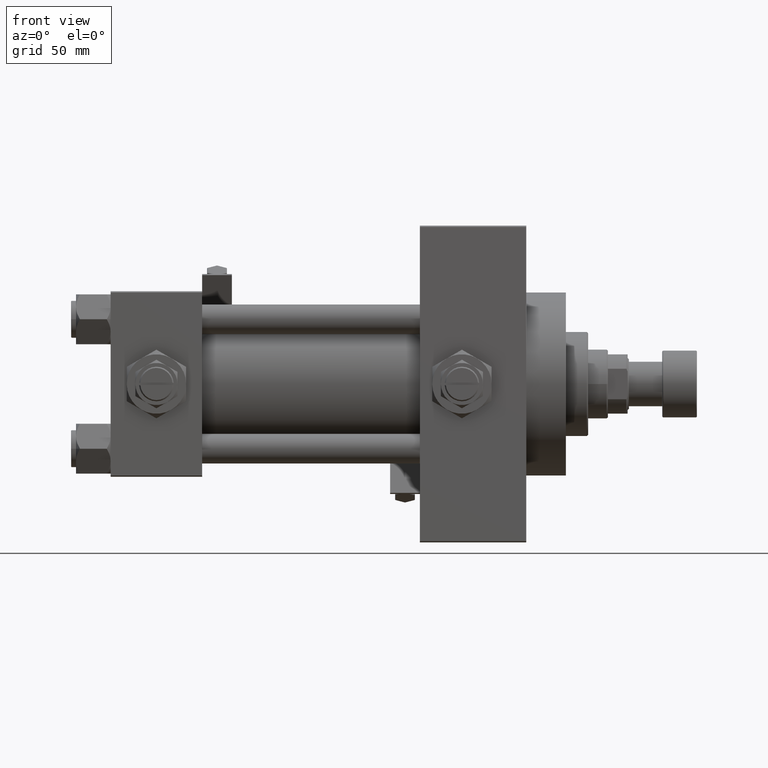
[diagram: clean part render]
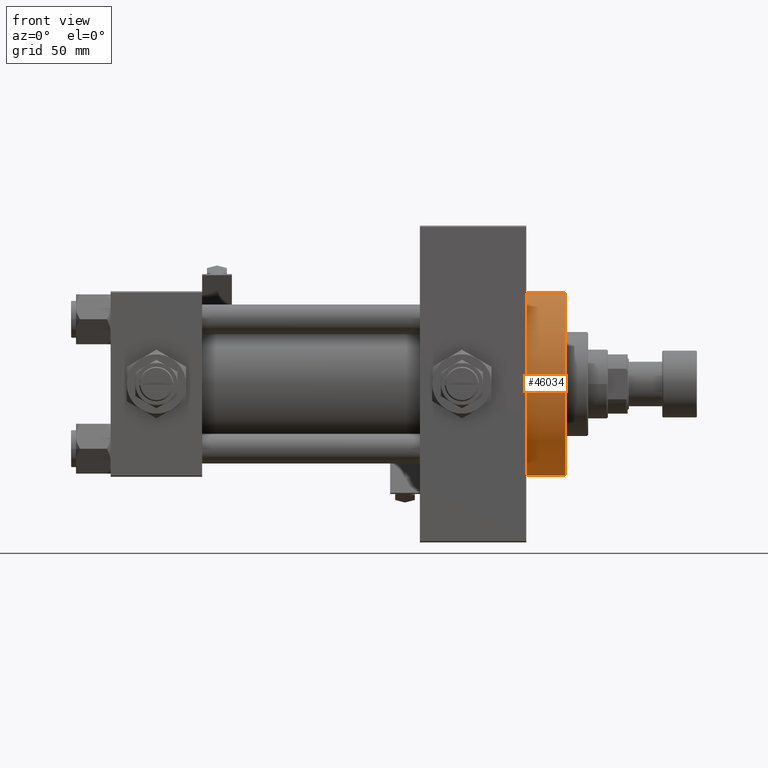
[diagram: same view with one face highlighted and labeled with its STEP entity id]
A machine part, front view. The second image highlights one B-rep face of the part: STEP entity #46034.
In plain terms, the highlighted cylindrical surface (partial cylindrical patch) has radius 37 mm, axis along (-1, -0, -0).
Its self-contained STEP definition (entity closure, byte-faithful):
#1994 = CIRCLE ( 'NONE', #43871, 37.00000000000000000 ) ;
#2603 = LINE ( 'NONE', #18275, #8353 ) ;
#2657 = LINE ( 'NONE', #6255, #29420 ) ;
#6255 = CARTESIAN_POINT ( 'NONE',  ( 184.0000000000000000, 0.000000000000000000, 37.00000000000000000 ) ) ;
#6292 = CARTESIAN_POINT ( 'NONE',  ( 167.9999999999999716, 4.531193156845206793E-15, -37.00000000000000000 ) ) ;
#7189 = AXIS2_PLACEMENT_3D ( 'NONE', #12696, #44018, #31698 ) ;
#8353 = VECTOR ( 'NONE', #10573, 1000.000000000000000 ) ;
#10573 = DIRECTION ( 'NONE',  ( -1.000000000000000000, -0.000000000000000000, -0.000000000000000000 ) ) ;
#10645 = CARTESIAN_POINT ( 'NONE',  ( 167.9999999999999716, 0.000000000000000000, 37.00000000000000000 ) ) ;
#11413 = VERTEX_POINT ( 'NONE', #19834 ) ;
#12696 = CARTESIAN_POINT ( 'NONE',  ( 184.0000000000000000, 0.000000000000000000, 0.000000000000000000 ) ) ;
#14914 = AXIS2_PLACEMENT_3D ( 'NONE', #33701, #46030, #29842 ) ;
#15039 = EDGE_CURVE ( 'NONE', #11413, #31684, #2603, .T. ) ;
#15616 = ORIENTED_EDGE ( 'NONE', *, *, #38070, .T. ) ;
#18015 = FACE_OUTER_BOUND ( 'NONE', #30000, .T. ) ;
#18275 = CARTESIAN_POINT ( 'NONE',  ( 184.0000000000000000, 4.531193156845206793E-15, -37.00000000000000000 ) ) ;
#19352 = ORIENTED_EDGE ( 'NONE', *, *, #35990, .F. ) ;
#19834 = CARTESIAN_POINT ( 'NONE',  ( 184.0000000000000000, 4.531193156845206793E-15, -37.00000000000000000 ) ) ;
#26541 = DIRECTION ( 'NONE',  ( -1.000000000000000000, -0.000000000000000000, -0.000000000000000000 ) ) ;
#26546 = VERTEX_POINT ( 'NONE', #10645 ) ;
#29180 = EDGE_CURVE ( 'NONE', #26546, #31684, #1994, .T. ) ;
#29420 = VECTOR ( 'NONE', #26541, 1000.000000000000000 ) ;
#29842 = DIRECTION ( 'NONE',  ( 0.000000000000000000, 0.000000000000000000, 1.000000000000000000 ) ) ;
#30000 = EDGE_LOOP ( 'NONE', ( #41313, #19352, #15616, #50276 ) ) ;
#30353 = CYLINDRICAL_SURFACE ( 'NONE', #14914, 37.00000000000000000 ) ;
#31684 = VERTEX_POINT ( 'NONE', #6292 ) ;
#31698 = DIRECTION ( 'NONE',  ( 0.000000000000000000, 0.000000000000000000, -1.000000000000000000 ) ) ;
#31800 = CIRCLE ( 'NONE', #7189, 37.00000000000000000 ) ;
#32504 = DIRECTION ( 'NONE',  ( 0.000000000000000000, 0.000000000000000000, -1.000000000000000000 ) ) ;
#32756 = CARTESIAN_POINT ( 'NONE',  ( 167.9999999999999716, 0.000000000000000000, 0.000000000000000000 ) ) ;
#33701 = CARTESIAN_POINT ( 'NONE',  ( 184.0000000000000000, 0.000000000000000000, 0.000000000000000000 ) ) ;
#34612 = VERTEX_POINT ( 'NONE', #35219 ) ;
#35219 = CARTESIAN_POINT ( 'NONE',  ( 184.0000000000000000, 0.000000000000000000, 37.00000000000000000 ) ) ;
#35990 = EDGE_CURVE ( 'NONE', #34612, #11413, #31800, .T. ) ;
#38070 = EDGE_CURVE ( 'NONE', #34612, #26546, #2657, .T. ) ;
#41313 = ORIENTED_EDGE ( 'NONE', *, *, #15039, .F. ) ;
#43871 = AXIS2_PLACEMENT_3D ( 'NONE', #32756, #48669, #32504 ) ;
#44018 = DIRECTION ( 'NONE',  ( 1.000000000000000000, 0.000000000000000000, 0.000000000000000000 ) ) ;
#46030 = DIRECTION ( 'NONE',  ( -1.000000000000000000, -0.000000000000000000, -0.000000000000000000 ) ) ;
#46034 = ADVANCED_FACE ( 'NONE', ( #18015 ), #30353, .T. ) ;
#48669 = DIRECTION ( 'NONE',  ( 1.000000000000000000, 0.000000000000000000, 0.000000000000000000 ) ) ;
#50276 = ORIENTED_EDGE ( 'NONE', *, *, #29180, .T. ) ;